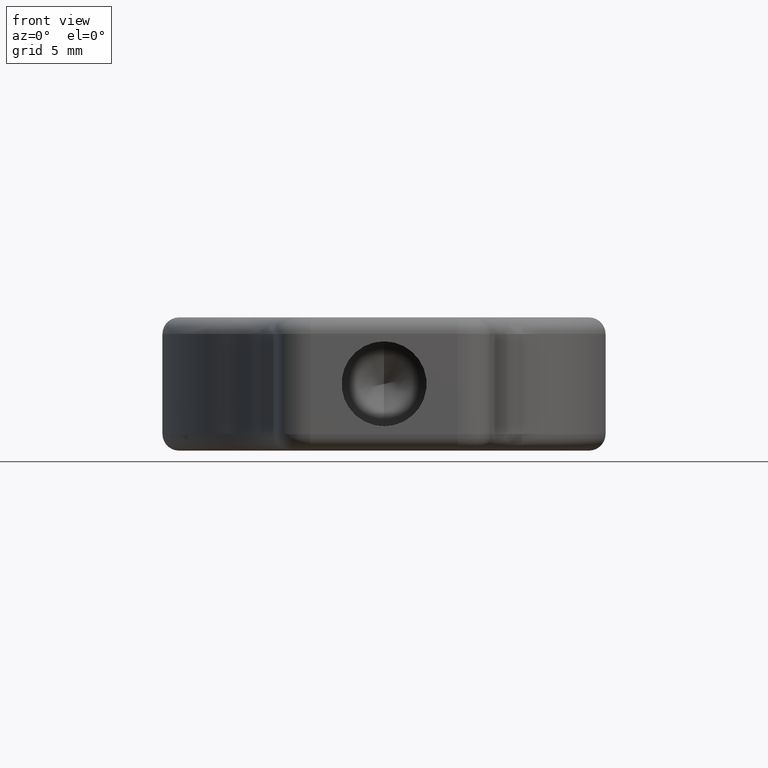
[diagram: clean part render]
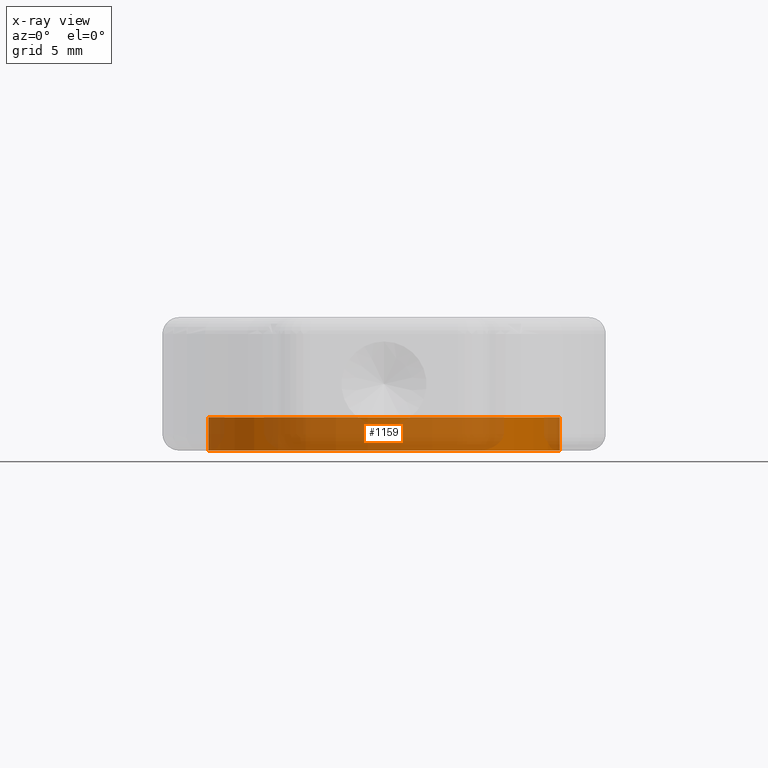
[diagram: x-ray — body ghosted, one internal face saturated and labeled with its STEP entity id]
A machine part, front view, then the same camera in x-ray: the body is ghosted and one INTERNAL B-rep face — a face not visible from any outside direction — is saturated and labeled: STEP entity #1159.
In plain terms, the highlighted cylindrical surface (partial cylindrical patch) has radius 10.55 mm, axis along (-0, -0, -1).
Its self-contained STEP definition (entity closure, byte-faithful):
#11 = CIRCLE ( 'NONE', #1065, 10.55000000000000100 ) ;
#33 = CARTESIAN_POINT ( 'NONE',  ( -8.326227451366660800, 1.633371797953784300, 30.00000000000000400 ) ) ;
#165 = CIRCLE ( 'NONE', #1530, 10.55000000000000100 ) ;
#205 = VERTEX_POINT ( 'NONE', #33 ) ;
#259 = ORIENTED_EDGE ( 'NONE', *, *, #1500, .F. ) ;
#347 = DIRECTION ( 'NONE',  ( -0.0000000000000000000, -0.0000000000000000000, -1.000000000000000000 ) ) ;
#648 = ORIENTED_EDGE ( 'NONE', *, *, #1641, .T. ) ;
#713 = DIRECTION ( 'NONE',  ( -0.0000000000000000000, -0.0000000000000000000, -1.000000000000000000 ) ) ;
#808 = VECTOR ( 'NONE', #713, 1000.000000000000000 ) ;
#814 = DIRECTION ( 'NONE',  ( 0.0000000000000000000, 0.0000000000000000000, 1.000000000000000000 ) ) ;
#860 = CARTESIAN_POINT ( 'NONE',  ( 12.77377254863333900, 1.633371797953785600, 30.00000000000000400 ) ) ;
#871 = DIRECTION ( 'NONE',  ( -0.0000000000000000000, -0.0000000000000000000, -1.000000000000000000 ) ) ;
#877 = EDGE_CURVE ( 'NONE', #205, #1061, #11, .T. ) ;
#910 = AXIS2_PLACEMENT_3D ( 'NONE', #1776, #347, #1613 ) ;
#1061 = VERTEX_POINT ( 'NONE', #860 ) ;
#1065 = AXIS2_PLACEMENT_3D ( 'NONE', #1813, #1447, #1442 ) ;
#1159 = ADVANCED_FACE ( 'NONE', ( #1162 ), #1696, .T. ) ;
#1162 = FACE_OUTER_BOUND ( 'NONE', #1595, .T. ) ;
#1259 = VERTEX_POINT ( 'NONE', #1759 ) ;
#1271 = LINE ( 'NONE', #1784, #808 ) ;
#1319 = ORIENTED_EDGE ( 'NONE', *, *, #877, .T. ) ;
#1442 = DIRECTION ( 'NONE',  ( 1.000000000000000000, 0.0000000000000000000, 0.0000000000000000000 ) ) ;
#1447 = DIRECTION ( 'NONE',  ( 0.0000000000000000000, 0.0000000000000000000, 1.000000000000000000 ) ) ;
#1500 = EDGE_CURVE ( 'NONE', #1259, #1761, #165, .T. ) ;
#1515 = ORIENTED_EDGE ( 'NONE', *, *, #2053, .F. ) ;
#1518 = CARTESIAN_POINT ( 'NONE',  ( 2.223772548633339100, 1.633371797953784300, 32.00000000000000000 ) ) ;
#1522 = VECTOR ( 'NONE', #871, 1000.000000000000000 ) ;
#1530 = AXIS2_PLACEMENT_3D ( 'NONE', #1518, #814, #1894 ) ;
#1595 = EDGE_LOOP ( 'NONE', ( #1515, #259, #648, #1319 ) ) ;
#1613 = DIRECTION ( 'NONE',  ( -1.000000000000000000, 0.0000000000000000000, 0.0000000000000000000 ) ) ;
#1641 = EDGE_CURVE ( 'NONE', #1259, #205, #1271, .T. ) ;
#1649 = CARTESIAN_POINT ( 'NONE',  ( 12.77377254863333900, 1.633371797953785600, 32.00000000000000000 ) ) ;
#1692 = LINE ( 'NONE', #1913, #1522 ) ;
#1696 = CYLINDRICAL_SURFACE ( 'NONE', #910, 10.55000000000000100 ) ;
#1759 = CARTESIAN_POINT ( 'NONE',  ( -8.326227451366660800, 1.633371797953784300, 32.00000000000000000 ) ) ;
#1761 = VERTEX_POINT ( 'NONE', #1649 ) ;
#1776 = CARTESIAN_POINT ( 'NONE',  ( 2.223772548633339100, 1.633371797953784300, 32.00000000000000000 ) ) ;
#1784 = CARTESIAN_POINT ( 'NONE',  ( -8.326227451366660800, 1.633371797953784300, 32.00000000000000000 ) ) ;
#1813 = CARTESIAN_POINT ( 'NONE',  ( 2.223772548633339100, 1.633371797953784300, 30.00000000000000400 ) ) ;
#1894 = DIRECTION ( 'NONE',  ( 1.000000000000000000, 0.0000000000000000000, 0.0000000000000000000 ) ) ;
#1913 = CARTESIAN_POINT ( 'NONE',  ( 12.77377254863333900, 1.633371797953785600, 32.00000000000000000 ) ) ;
#2053 = EDGE_CURVE ( 'NONE', #1761, #1061, #1692, .T. ) ;